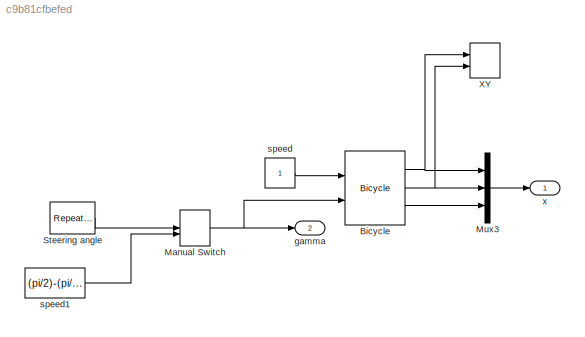
MODEL slx_c9b81cfbefed
KIND model
CONFIG AbsTol = auto
CONFIG EnableMultiTasking = off
CONFIG FixedStep = auto
CONFIG MaxStep = auto
CONFIG MinStep = auto
CONFIG RelTol = 1e-3
CONFIG SampleTimeConstraint = Unconstrained
CONFIG SolverName = VariableStepAuto
CONFIG StartTime = 0.0
CONFIG StopTime = 10.0
BLOCK [Reference] Bicycle  REF=roblocks/Vehicles/Bicycle  (lib defined in mdl_2a292b13c81b, mdl_69400f8cfe22, +12 more)
  Ports = [2, 3]
  SourceBlock = roblocks/Vehicles/Bicycle
BLOCK [ManualSwitch] Manual Switch
BLOCK [Mux] Mux3
  DisplayOption = bar
  Inputs = 3
  Ports = [3, 1]
BLOCK [Reference] Steering angle  REF=simulink/Sources/Repeating
Sequence
Stair
  Ports = [0, 1]
  SourceBlock = simulink/Sources/Repeating\nSequence\nStair
  SourceProductBaseCode = SL
  SourceType = Repeating Sequence Stair
BLOCK [Record] XY
  CompatibilityTag = XY
  FileSettingsInternal = {"entries":[{"content":{"excelSettings":{"content":{},"type":"Streamout.ExcelSettings"}},"type":"Streamout.FileSettingStorage","uuid":"5e76ab6b-3c48-49bd-98b9-b0ca941eaadb"}],"packageUris":["http://schema.mathworks.com/mf0/streamout_blocks/R2020a"],"version":"1.0"}
  Layout = [1 1]
  Ports = [2]
  RecordToWorkspace = on
  SignalsInternal = {"entries":[{"content":{"signals":[{"content":{"blockPath":["Trajectories_Transpalet/XY"],"channel":[],"dimensions":[1],"domain":"Trajectories_Transpalet/XY","lineColor":"#ff6929","plots":[1],"port":1,"sid":[""],"signalID":1505,"signalName":"Bicycle:1"},"type":"RecordBlkView.Signal","uuid":"bba8ad1c-b6cc-4c10-82e1-d9e8909c4ac5"},{"content":{"blockPath":["Trajectories_Transpalet/XY"],"channel":[],"...<+403ch>
  VariableName = recorout
  VisualizationBindings = {"xyplotplugin":{"info":[{"series":[],"subplotID":1}]}}
  st = -1
BLOCK [Outport] gamma
  Port = 2
BLOCK [Constant] speed
  SampleTime = 0.02
  VectorParams1D = off
BLOCK [Constant] speed1
  SampleTime = 0.02
  Value = (pi/2)-(pi/16)
  VectorParams1D = off
BLOCK [Outport] x
NET Bicycle:1 -> Mux3:1, XY:1
NET Bicycle:2 -> Mux3:2, XY:2
LINE Bicycle:3 -> Mux3:3
NET Manual Switch:1 -> Bicycle:2, gamma:1
LINE Mux3:1 -> x:1
LINE Steering angle:1 -> Manual Switch:1
LINE speed1:1 -> Manual Switch:2
LINE speed:1 -> Bicycle:1
note: NET lines group one-source signal fan-out (src -> all destinations, sorted); 1:1 wires keep LINE
